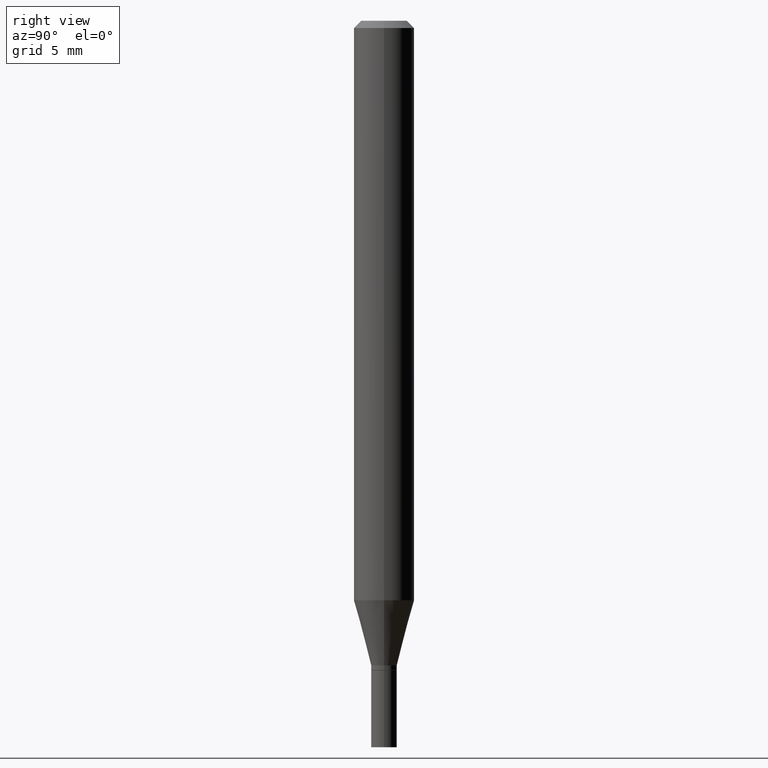
[diagram: clean part render]
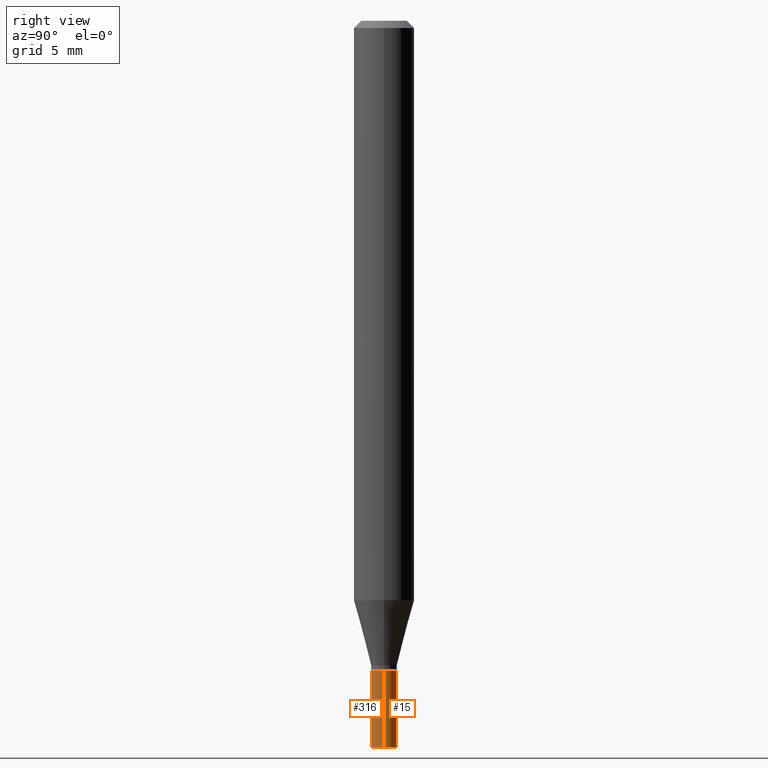
[diagram: same view with one multi-face feature highlighted, each face labeled with its STEP entity id]
A machine part, right view. The highlighted faces form ONE feature: a constant-radius fillet chain: 2 tangent blend faces with common blend radius 0.6731 mm. The faces share edges in the B-rep.
Their STEP definitions:
[1] entity #15 (Cylinder):
#15 = ADVANCED_FACE ( 'NONE', ( #297 ), #84, .T. ) ;
#31 = EDGE_CURVE ( 'NONE', #305, #434, #338, .T. ) ;
#34 = CARTESIAN_POINT ( 'NONE',  ( -0.02649999999999999925, -4.771355416850261743E-15, -1.500000000000000222 ) ) ;
#41 = EDGE_CURVE ( 'NONE', #101, #434, #459, .T. ) ;
#47 = CARTESIAN_POINT ( 'NONE',  ( -0.02649999999999999925, -4.771355416850261743E-15, -1.341000000000000192 ) ) ;
#50 = DIRECTION ( 'NONE',  ( 1.000000000000000000, -6.982962677686277755E-15, 0.000000000000000000 ) ) ;
#51 = EDGE_CURVE ( 'NONE', #408, #305, #63, .T. ) ;
#63 = CIRCLE ( 'NONE', #340, 0.02649999999999999925 ) ;
#78 = VECTOR ( 'NONE', #184, 39.37007874015748143 ) ;
#84 = CYLINDRICAL_SURFACE ( 'NONE', #288, 0.02649999999999999925 ) ;
#92 = CARTESIAN_POINT ( 'NONE',  ( 0.02649999999999999925, -4.867124986347346010E-15, -1.341000000000000192 ) ) ;
#101 = VERTEX_POINT ( 'NONE', #92 ) ;
#118 = DIRECTION ( 'NONE',  ( 1.000000000000000000, -6.982962677686266711E-15, 4.876176775795935793E-29 ) ) ;
#122 = ORIENTED_EDGE ( 'NONE', *, *, #41, .F. ) ;
#144 = CARTESIAN_POINT ( 'NONE',  ( 0.02649999999999999925, -5.422270519223404655E-15, -1.500000000000000222 ) ) ;
#147 = LINE ( 'NONE', #430, #444 ) ;
#178 = ORIENTED_EDGE ( 'NONE', *, *, #51, .T. ) ;
#184 = DIRECTION ( 'NONE',  ( -2.445468806185136877E-29, 3.491481338843145188E-15, 1.000000000000000000 ) ) ;
#224 = DIRECTION ( 'NONE',  ( -2.445468806185136597E-29, 3.491481338843145583E-15, 1.000000000000000000 ) ) ;
#257 = DIRECTION ( 'NONE',  ( -2.445468806185136877E-29, 3.491481338843145188E-15, 1.000000000000000000 ) ) ;
#258 = AXIS2_PLACEMENT_3D ( 'NONE', #441, #302, #50 ) ;
#288 = AXIS2_PLACEMENT_3D ( 'NONE', #442, #224, #118 ) ;
#297 = FACE_OUTER_BOUND ( 'NONE', #330, .T. ) ;
#302 = DIRECTION ( 'NONE',  ( -2.445468806185136597E-29, 3.491481338843145583E-15, 1.000000000000000000 ) ) ;
#305 = VERTEX_POINT ( 'NONE', #34 ) ;
#330 = EDGE_LOOP ( 'NONE', ( #178, #357, #122, #392 ) ) ;
#338 = LINE ( 'NONE', #373, #78 ) ;
#340 = AXIS2_PLACEMENT_3D ( 'NONE', #440, #448, #367 ) ;
#357 = ORIENTED_EDGE ( 'NONE', *, *, #31, .T. ) ;
#367 = DIRECTION ( 'NONE',  ( 1.000000000000000000, -6.982962677686277755E-15, 0.000000000000000000 ) ) ;
#373 = CARTESIAN_POINT ( 'NONE',  ( -0.02649999999999999925, 1.882938249764265439E-16, -1.303517798917549926E-30 ) ) ;
#392 = ORIENTED_EDGE ( 'NONE', *, *, #433, .F. ) ;
#408 = VERTEX_POINT ( 'NONE', #144 ) ;
#430 = CARTESIAN_POINT ( 'NONE',  ( 0.02649999999999999925, -1.850485109586860590E-16, 1.292186845585922957E-30 ) ) ;
#433 = EDGE_CURVE ( 'NONE', #408, #101, #147, .T. ) ;
#434 = VERTEX_POINT ( 'NONE', #47 ) ;
#440 = CARTESIAN_POINT ( 'NONE',  ( 3.668203209277704895E-29, -5.237222008264718177E-15, -1.500000000000000222 ) ) ;
#441 = CARTESIAN_POINT ( 'NONE',  ( 3.279373669094269136E-29, -4.682076475388659531E-15, -1.341000000000000192 ) ) ;
#442 = CARTESIAN_POINT ( 'NONE',  ( 0.000000000000000000, 0.000000000000000000, 0.000000000000000000 ) ) ;
#444 = VECTOR ( 'NONE', #257, 39.37007874015748143 ) ;
#448 = DIRECTION ( 'NONE',  ( -2.445468806185136597E-29, 3.491481338843145583E-15, 1.000000000000000000 ) ) ;
#459 = CIRCLE ( 'NONE', #258, 0.02649999999999999925 ) ;
[2] entity #316 (Cylinder):
#9 = ORIENTED_EDGE ( 'NONE', *, *, #100, .T. ) ;
#14 = CARTESIAN_POINT ( 'NONE',  ( 3.668203209277704895E-29, -5.237222008264718177E-15, -1.500000000000000222 ) ) ;
#31 = EDGE_CURVE ( 'NONE', #305, #434, #338, .T. ) ;
#34 = CARTESIAN_POINT ( 'NONE',  ( -0.02649999999999999925, -4.771355416850261743E-15, -1.500000000000000222 ) ) ;
#35 = CIRCLE ( 'NONE', #87, 0.02649999999999999925 ) ;
#47 = CARTESIAN_POINT ( 'NONE',  ( -0.02649999999999999925, -4.771355416850261743E-15, -1.341000000000000192 ) ) ;
#55 = EDGE_LOOP ( 'NONE', ( #447, #9, #333, #237 ) ) ;
#61 = DIRECTION ( 'NONE',  ( -2.445468806185136597E-29, 3.491481338843145583E-15, 1.000000000000000000 ) ) ;
#78 = VECTOR ( 'NONE', #184, 39.37007874015748143 ) ;
#87 = AXIS2_PLACEMENT_3D ( 'NONE', #14, #368, #268 ) ;
#92 = CARTESIAN_POINT ( 'NONE',  ( 0.02649999999999999925, -4.867124986347346010E-15, -1.341000000000000192 ) ) ;
#100 = EDGE_CURVE ( 'NONE', #305, #408, #35, .T. ) ;
#101 = VERTEX_POINT ( 'NONE', #92 ) ;
#120 = AXIS2_PLACEMENT_3D ( 'NONE', #138, #162, #360 ) ;
#138 = CARTESIAN_POINT ( 'NONE',  ( 0.000000000000000000, 0.000000000000000000, 0.000000000000000000 ) ) ;
#144 = CARTESIAN_POINT ( 'NONE',  ( 0.02649999999999999925, -5.422270519223404655E-15, -1.500000000000000222 ) ) ;
#147 = LINE ( 'NONE', #430, #444 ) ;
#162 = DIRECTION ( 'NONE',  ( -2.445468806185136597E-29, 3.491481338843145583E-15, 1.000000000000000000 ) ) ;
#184 = DIRECTION ( 'NONE',  ( -2.445468806185136877E-29, 3.491481338843145188E-15, 1.000000000000000000 ) ) ;
#205 = CYLINDRICAL_SURFACE ( 'NONE', #120, 0.02649999999999999925 ) ;
#223 = EDGE_CURVE ( 'NONE', #434, #101, #259, .T. ) ;
#237 = ORIENTED_EDGE ( 'NONE', *, *, #223, .F. ) ;
#250 = FACE_OUTER_BOUND ( 'NONE', #55, .T. ) ;
#257 = DIRECTION ( 'NONE',  ( -2.445468806185136877E-29, 3.491481338843145188E-15, 1.000000000000000000 ) ) ;
#259 = CIRCLE ( 'NONE', #359, 0.02649999999999999925 ) ;
#268 = DIRECTION ( 'NONE',  ( 1.000000000000000000, -6.982962677686277755E-15, 0.000000000000000000 ) ) ;
#305 = VERTEX_POINT ( 'NONE', #34 ) ;
#316 = ADVANCED_FACE ( 'NONE', ( #250 ), #205, .T. ) ;
#325 = CARTESIAN_POINT ( 'NONE',  ( 3.279373669094269136E-29, -4.682076475388659531E-15, -1.341000000000000192 ) ) ;
#333 = ORIENTED_EDGE ( 'NONE', *, *, #433, .T. ) ;
#338 = LINE ( 'NONE', #373, #78 ) ;
#359 = AXIS2_PLACEMENT_3D ( 'NONE', #325, #61, #456 ) ;
#360 = DIRECTION ( 'NONE',  ( 1.000000000000000000, -6.982962677686266711E-15, 4.876176775795935793E-29 ) ) ;
#368 = DIRECTION ( 'NONE',  ( -2.445468806185136597E-29, 3.491481338843145583E-15, 1.000000000000000000 ) ) ;
#373 = CARTESIAN_POINT ( 'NONE',  ( -0.02649999999999999925, 1.882938249764265439E-16, -1.303517798917549926E-30 ) ) ;
#408 = VERTEX_POINT ( 'NONE', #144 ) ;
#430 = CARTESIAN_POINT ( 'NONE',  ( 0.02649999999999999925, -1.850485109586860590E-16, 1.292186845585922957E-30 ) ) ;
#433 = EDGE_CURVE ( 'NONE', #408, #101, #147, .T. ) ;
#434 = VERTEX_POINT ( 'NONE', #47 ) ;
#444 = VECTOR ( 'NONE', #257, 39.37007874015748143 ) ;
#447 = ORIENTED_EDGE ( 'NONE', *, *, #31, .F. ) ;
#456 = DIRECTION ( 'NONE',  ( 1.000000000000000000, -6.982962677686277755E-15, 0.000000000000000000 ) ) ;